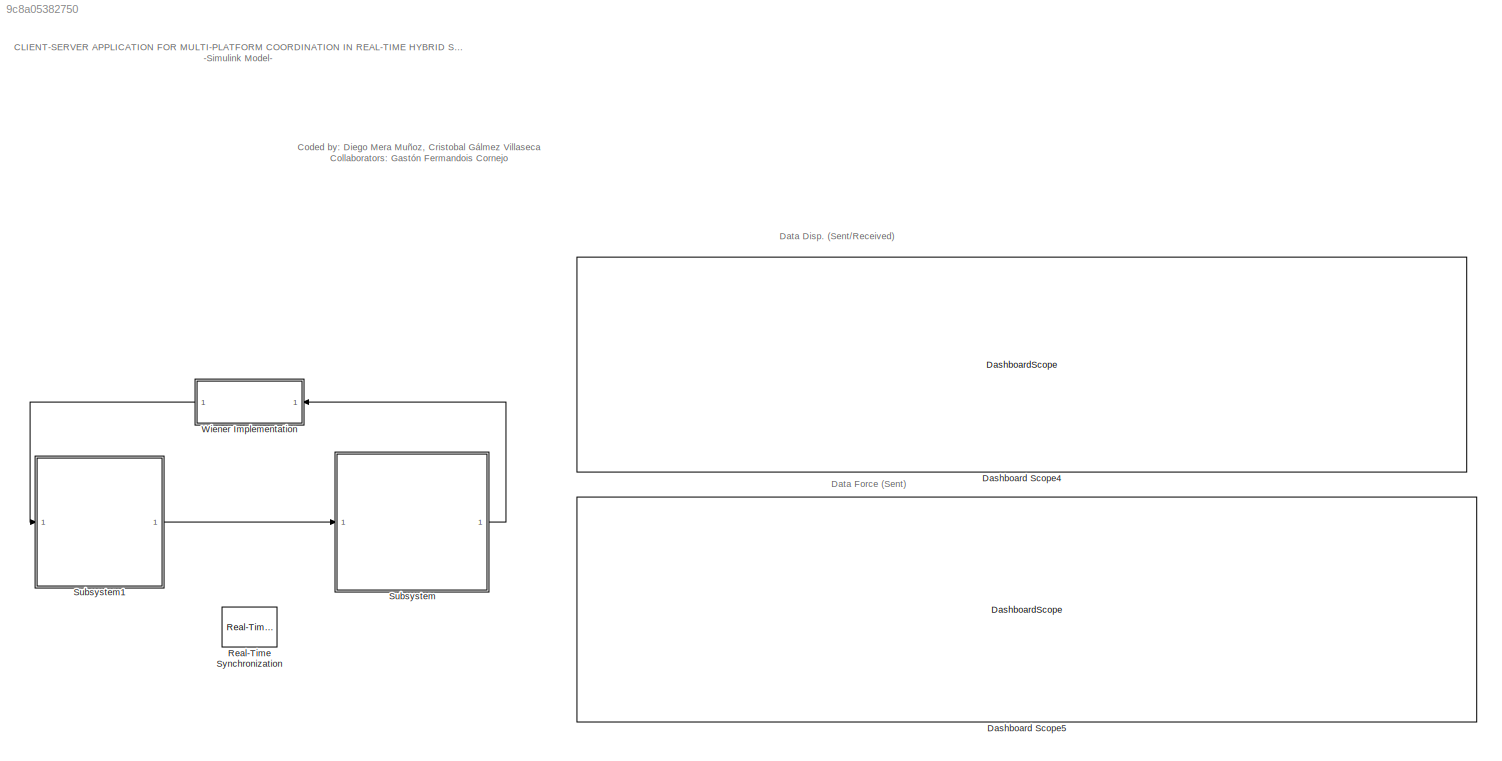
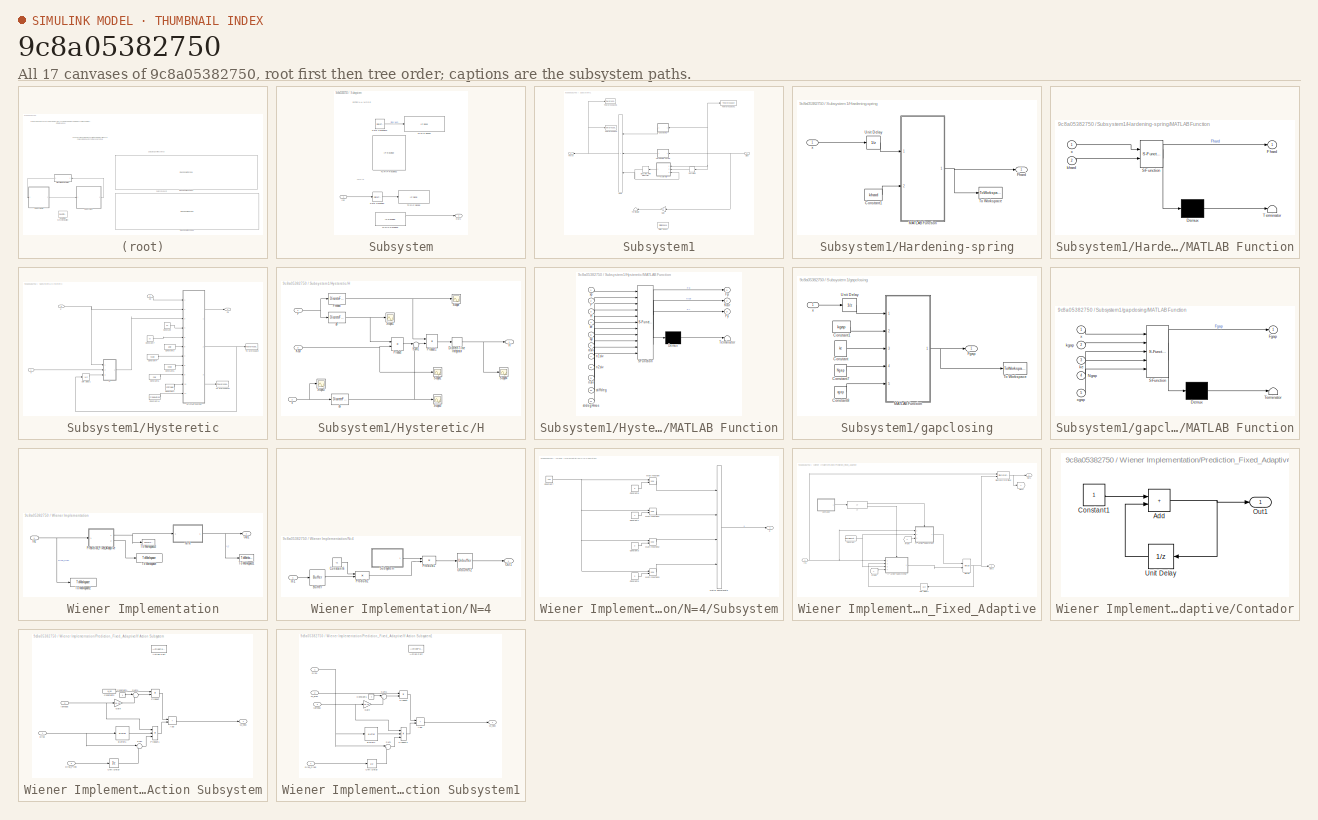
[diagram: thumbnail index - all 17 canvases of the model, root first then tree order]
MODEL slx_9c8a05382750
KIND model
CONFIG AbsTol = auto
CONFIG EnableMultiTasking = off
CONFIG FixedStep = dtfast
CONFIG InitFcn = clear('all');\ninitializeSimulation;
CONFIG MaxStep = auto
CONFIG MinStep = auto
CONFIG PreLoadFcn = initializeSimulation;
CONFIG RelTol = 1e-3
CONFIG SampleTimeConstraint = Unconstrained
CONFIG SolverName = ode8
CONFIG StartTime = 0.0
CONFIG StopTime = 31.2
BLOCK [DashboardScope] Dashboard Scope4
  Ymax = 5
  Ymin = -5
BLOCK [DashboardScope] Dashboard Scope5
  Ymax = 1e-5
  Ymin = -1.5e-5
BLOCK [Reference] Real-Time Synchronization  REF=sldrtlib/Real-Time
Synchronization
  Ports = []
  SourceBlock = sldrtlib/Real-Time\nSynchronization
  SourceProductBaseCode = WT
  SourceType = Simulink Desktop Real-Time Synchronization
BLOCK [SubSystem] Subsystem
  Ports = [1, 1]
  RequestExecContextInheritance = off
BLOCK [Inport] Subsystem/In2
BLOCK [Outport] Subsystem/Out1
BLOCK [RateTransition] Subsystem/Rate Transition
  OutPortSampleTime = dtsim
BLOCK [RateTransition] Subsystem/Rate Transition2
  Commented = on
  OutPortSampleTime = dtsim
BLOCK [Reference] Subsystem/TCP//IP Receive2  REF=raspberrypiNetworklib/TCP//IP Receive
  Commented = on
  Ports = [0, 2]
  Priority = 2
  SourceBlock = raspberrypiNetworklib/TCP//IP Receive
  SourceProductBaseCode = RASPPI
  SourceType = codertarget.raspi.internal.RaspiTCPReceive
BLOCK [Reference] Subsystem/TCP//IP Receive5  REF=instrumentlib/TCP//IP Receive
  Ports = [0, 2]
  Priority = 1
  SourceBlock = instrumentlib/TCP//IP Receive
  SourceProductBaseCode = IC
  SourceType = TCP/IP Receive
BLOCK [Reference] Subsystem/TCP//IP Send2  REF=raspberrypiNetworklib/TCP//IP Send
  Commented = on
  Ports = [1]
  Priority = 1
  SourceBlock = raspberrypiNetworklib/TCP//IP Send
  SourceProductBaseCode = RASPPI
  SourceType = codertarget.raspi.internal.RaspiTCPSend
BLOCK [Reference] Subsystem/TCP//IP Send5  REF=instrumentlib/TCP//IP Send
  Ports = [1]
  Priority = 2
  SourceBlock = instrumentlib/TCP//IP Send
  SourceProductBaseCode = IC
  SourceType = TCP/IP Send
BLOCK [SubSystem] Subsystem1
  Ports = [1, 1]
  RequestExecContextInheritance = off
BLOCK [Derivative] Subsystem1/Derivative
BLOCK [DiscreteIntegrator] Subsystem1/Discrete-Time Integrator
  ICPrevOutput = DiscIntNeverNeededParam
  ICPrevScaledInput = DiscIntNeverNeededParam
  InitialConditionSetting = Auto
  Ports = [1, 1]
  SampleTime = -1
BLOCK [Inport] Subsystem1/Disp
  NameLocation = top
BLOCK [Outport] Subsystem1/Force
  NameLocation = top
  VectorParamsAs1DForOutWhenUnconnected = off
BLOCK [Gain] Subsystem1/Gain
  Gain = ke
BLOCK [SubSystem] Subsystem1/Hardening-spring
  Ports = [1, 1]
  RequestExecContextInheritance = off
BLOCK [Constant] Subsystem1/Hardening-spring/Constant1
  Value = khard
BLOCK [Outport] Subsystem1/Hardening-spring/Fhard
  VectorParamsAs1DForOutWhenUnconnected = off
BLOCK [SubSystem] Subsystem1/Hardening-spring/MATLAB Function
  ErrorFcn = Stateflow.Translate.translate
  PermitHierarchicalResolution = ExplicitOnly
  Ports = [2, 1]
  RequestExecContextInheritance = off
  SFBlockType = MATLAB Function
  TreatAsAtomicUnit = on
BLOCK [Demux] Subsystem1/Hardening-spring/MATLAB Function/ Demux 
  Outputs = 1
  Ports = [1, 1]
BLOCK [S-Function] Subsystem1/Hardening-spring/MATLAB Function/ SFunction 
  EnableBusSupport = on
  FunctionName = sf_sfun
  PortCounts = [2 2]
  Ports = [2, 2]
  SFcnIsStateOwnerBlock = off
  SFunctionDeploymentMode = off
  Tag = Stateflow S-Function 8
BLOCK [Terminator] Subsystem1/Hardening-spring/MATLAB Function/ Terminator 
BLOCK [Outport] Subsystem1/Hardening-spring/MATLAB Function/Fhard
  VectorParamsAs1DForOutWhenUnconnected = off
BLOCK [Inport] Subsystem1/Hardening-spring/MATLAB Function/khard
  Port = 2
BLOCK [Inport] Subsystem1/Hardening-spring/MATLAB Function/x
BLOCK [ToWorkspace] Subsystem1/Hardening-spring/To Workspace
  FixptAsFi = on
  MaxDataPoints = inf
  Ports = [1]
  SampleTime = -1
  SaveFormat = Timeseries
  VariableName = Fhard
BLOCK [UnitDelay] Subsystem1/Hardening-spring/Unit Delay
  HasFrameUpgradeWarning = on
  SampleTime = -1
BLOCK [Inport] Subsystem1/Hardening-spring/x
BLOCK [SubSystem] Subsystem1/Hysteretic
  Ports = [3, 1]
  RequestExecContextInheritance = off
BLOCK [Constant] Subsystem1/Hysteretic/Constant
  Value = ke
BLOCK [Constant] Subsystem1/Hysteretic/Constant1
  Value = stiffdeg
BLOCK [Constant] Subsystem1/Hysteretic/Constant14
  Value = strdegHmos
BLOCK [Constant] Subsystem1/Hysteretic/Constant3
  Value = asiv
BLOCK [Constant] Subsystem1/Hysteretic/Constant4
  Value = n1siv
BLOCK [Constant] Subsystem1/Hysteretic/Constant5
  Value = n2siv
BLOCK [Constant] Subsystem1/Hysteretic/Constant6
  Value = nsiv
BLOCK [Constant] Subsystem1/Hysteretic/Constant7
  Value = xy
BLOCK [Inport] Subsystem1/Hysteretic/F
  Port = 3
BLOCK [Outport] Subsystem1/Hysteretic/Fp
  VectorParamsAs1DForOutWhenUnconnected = off
BLOCK [SubSystem] Subsystem1/Hysteretic/H
  Ports = [3, 1]
  RequestExecContextInheritance = off
BLOCK [DiscreteIntegrator] Subsystem1/Hysteretic/H/Discrete-Time Integrator
  ICPrevOutput = DiscIntNeverNeededParam
  ICPrevScaledInput = DiscIntNeverNeededParam
  InitialConditionSetting = Auto
  IntegratorMethod = Accumulation: Trapezoidal
  Ports = [1, 1]
  SampleTime = -1
BLOCK [Inport] Subsystem1/Hysteretic/H/F
BLOCK [DiscreteFir] Subsystem1/Hysteretic/H/Fmean
  InputPortMap = u0
  OutputPortMap = o0
  Ports = [1, 1]
BLOCK [Outport] Subsystem1/Hysteretic/H/H
  VectorParamsAs1DForOutWhenUnconnected = off
BLOCK [Inport] Subsystem1/Hysteretic/H/Kcur 
  Port = 3
BLOCK [Product] Subsystem1/Hysteretic/H/Product
  Inputs = */
  Ports = [2, 1]
BLOCK [Product] Subsystem1/Hysteretic/H/Product1
  Ports = [2, 1]
BLOCK [Scope] Subsystem1/Hysteretic/H/Scope
  Floating = off
  NumInputPorts = 1
  Ports = [1]
  ScopeSpecificationString = Simulink.scopes.TimeScopeBlockCfg('CurrentConfiguration', extmgr.ConfigurationSet(extmgr.Configuration('Core','General UI',true),extmgr.Configuration('Core','Source UI',true),extmgr.Configuration('Sources','WiredSimulink',true),extmgr.Configuration('Visuals','Time Domain',true,'SerializedDisplays',{struct('MinYLimReal','-1334.94414','MaxYLimReal','1331.24498','YLabelReal','','MinYLimMag','  0.0000...<+1419ch>
BLOCK [Scope] Subsystem1/Hysteretic/H/Scope1
  Floating = off
  NumInputPorts = 1
  Ports = [1]
  ScopeSpecificationString = Simulink.scopes.TimeScopeBlockCfg('CurrentConfiguration', extmgr.ConfigurationSet(extmgr.Configuration('Core','General UI',true),extmgr.Configuration('Core','Source UI',true),extmgr.Configuration('Sources','WiredSimulink',true,'DataLoggingVariableName','ScopeData1'),extmgr.Configuration('Visuals','Time Domain',true,'SerializedDisplays',{struct('MinYLimReal','-69.92113','MaxYLimReal','52.90436','YL...<+1386ch>
BLOCK [Scope] Subsystem1/Hysteretic/H/Scope2
  Floating = off
  NumInputPorts = 1
  Ports = [1]
  ScopeSpecificationString = Simulink.scopes.TimeScopeBlockCfg('CurrentConfiguration', extmgr.ConfigurationSet(extmgr.Configuration('Core','General UI',true),extmgr.Configuration('Core','Source UI',true),extmgr.Configuration('Sources','WiredSimulink',true,'DataLoggingVariableName','ScopeData2'),extmgr.Configuration('Visuals','Time Domain',true,'SerializedDisplays',{struct('MinYLimReal','-148616.125','MaxYLimReal','1338735.125...<+1440ch>
BLOCK [Scope] Subsystem1/Hysteretic/H/Scope3
  Floating = off
  NumInputPorts = 1
  Ports = [1]
  ScopeSpecificationString = Simulink.scopes.TimeScopeBlockCfg('CurrentConfiguration', extmgr.ConfigurationSet(extmgr.Configuration('Core','General UI',true),extmgr.Configuration('Core','Source UI',true),extmgr.Configuration('Sources','WiredSimulink',true,'DataLoggingVariableName','ScopeData3'),extmgr.Configuration('Visuals','Time Domain',true,'SerializedDisplays',{struct('MinYLimReal','-23.92575','MaxYLimReal','20.89861','YL...<+1367ch>
BLOCK [Scope] Subsystem1/Hysteretic/H/Scope4
  Floating = off
  NumInputPorts = 1
  Ports = [1]
  ScopeSpecificationString = Simulink.scopes.TimeScopeBlockCfg('CurrentConfiguration', extmgr.ConfigurationSet(extmgr.Configuration('Core','General UI',true),extmgr.Configuration('Core','Source UI',true),extmgr.Configuration('Sources','WiredSimulink',true,'DataLoggingVariableName','ScopeData4'),extmgr.Configuration('Visuals','Time Domain',true,'SerializedDisplays',{struct('MinYLimReal','-24.48488','MaxYLimReal','220.36392','Y...<+1412ch>
BLOCK [Scope] Subsystem1/Hysteretic/H/Scope5
  Floating = off
  NumInputPorts = 1
  Ports = [1]
  ScopeSpecificationString = Simulink.scopes.TimeScopeBlockCfg('CurrentConfiguration', extmgr.ConfigurationSet(extmgr.Configuration('Core','General UI',true),extmgr.Configuration('Core','Source UI',true),extmgr.Configuration('Sources','WiredSimulink',true,'DataLoggingVariableName','ScopeData5'),extmgr.Configuration('Visuals','Time Domain',true,'SerializedDisplays',{struct('MinYLimReal','-2556.51301','MaxYLimReal','2563.56064'...<+1453ch>
BLOCK [Sum] Subsystem1/Hysteretic/H/Sum1
  Inputs = |-+
  Ports = [2, 1]
BLOCK [DiscreteFir] Subsystem1/Hysteretic/H/dF
  Coefficients = [1 -1]
  InputPortMap = u0
  OutputPortMap = o0
  Ports = [1, 1]
BLOCK [DiscreteFir] Subsystem1/Hysteretic/H/dx
  Coefficients = [1 -1]
  InputPortMap = u0
  OutputPortMap = o0
  Ports = [1, 1]
BLOCK [Inport] Subsystem1/Hysteretic/H/x
  Port = 2
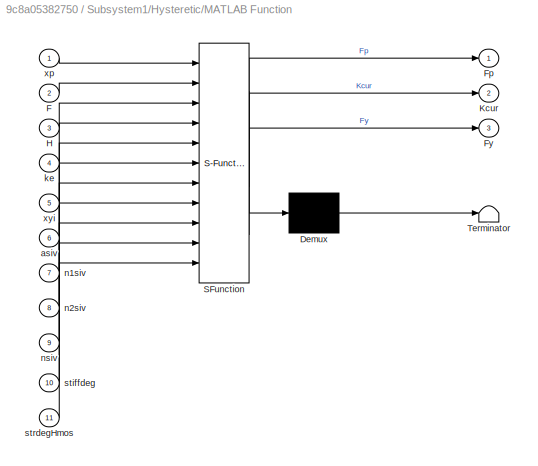
BLOCK [SubSystem] Subsystem1/Hysteretic/MATLAB Function
  ErrorFcn = Stateflow.Translate.translate
  PermitHierarchicalResolution = ExplicitOnly
  Ports = [11, 3]
  RequestExecContextInheritance = off
  SFBlockType = MATLAB Function
  TreatAsAtomicUnit = on
BLOCK [Demux] Subsystem1/Hysteretic/MATLAB Function/ Demux 
  Outputs = 1
  Ports = [1, 1]
BLOCK [S-Function] Subsystem1/Hysteretic/MATLAB Function/ SFunction 
  EnableBusSupport = on
  FunctionName = sf_sfun
  PortCounts = [11 4]
  Ports = [11, 4]
  SFcnIsStateOwnerBlock = off
  SFunctionDeploymentMode = off
  Tag = Stateflow S-Function 9
BLOCK [Terminator] Subsystem1/Hysteretic/MATLAB Function/ Terminator 
BLOCK [Inport] Subsystem1/Hysteretic/MATLAB Function/F
  Port = 2
BLOCK [Outport] Subsystem1/Hysteretic/MATLAB Function/Fp
  VectorParamsAs1DForOutWhenUnconnected = off
BLOCK [Outport] Subsystem1/Hysteretic/MATLAB Function/Fy
  Port = 3
  VectorParamsAs1DForOutWhenUnconnected = off
BLOCK [Inport] Subsystem1/Hysteretic/MATLAB Function/H
  Port = 3
BLOCK [Outport] Subsystem1/Hysteretic/MATLAB Function/Kcur
  Port = 2
  VectorParamsAs1DForOutWhenUnconnected = off
BLOCK [Inport] Subsystem1/Hysteretic/MATLAB Function/asiv
  Port = 6
BLOCK [Inport] Subsystem1/Hysteretic/MATLAB Function/ke
  Port = 4
BLOCK [Inport] Subsystem1/Hysteretic/MATLAB Function/n1siv
  Port = 7
BLOCK [Inport] Subsystem1/Hysteretic/MATLAB Function/n2siv
  Port = 8
BLOCK [Inport] Subsystem1/Hysteretic/MATLAB Function/nsiv
  Port = 9
BLOCK [Inport] Subsystem1/Hysteretic/MATLAB Function/stiffdeg
  Port = 10
BLOCK [Inport] Subsystem1/Hysteretic/MATLAB Function/strdegHmos
  Port = 11
BLOCK [Inport] Subsystem1/Hysteretic/MATLAB Function/xp
BLOCK [Inport] Subsystem1/Hysteretic/MATLAB Function/xyi
  Port = 5
BLOCK [ToWorkspace] Subsystem1/Hysteretic/To Workspace
  FixptAsFi = on
  MaxDataPoints = inf
  Ports = [1]
  SampleTime = -1
  SaveFormat = Timeseries
  VariableName = Kcur
BLOCK [ToWorkspace] Subsystem1/Hysteretic/To Workspace1
  FixptAsFi = on
  MaxDataPoints = inf
  Ports = [1]
  SampleTime = -1
  SaveFormat = Timeseries
  VariableName = Fy
BLOCK [UnitDelay] Subsystem1/Hysteretic/Unit Delay1
  HasFrameUpgradeWarning = on
  InitialCondition = ke
  SampleTime = -1
BLOCK [Inport] Subsystem1/Hysteretic/x
BLOCK [Inport] Subsystem1/Hysteretic/xp
  Port = 2
BLOCK [StateSpace] Subsystem1/State-Space
  A = Ap
  B = Bp
  C = Cp
  Commented = on
  D = Dp
  InitialCondition = 0
  NameLocation = top
  Ports = [1, 1]
BLOCK [Sum] Subsystem1/Sum
  IconShape = rectangular
  Inputs = +++
  Ports = [3, 1]
BLOCK [Terminator] Subsystem1/Terminator
  NameLocation = top
BLOCK [ToWorkspace] Subsystem1/To Workspace
  FixptAsFi = on
  MaxDataPoints = inf
  Ports = [1]
  SampleTime = -1
  SaveFormat = Timeseries
  VariableName = rt
BLOCK [ToWorkspace] Subsystem1/To Workspace1
  FixptAsFi = on
  MaxDataPoints = inf
  Ports = [1]
  SampleTime = -1
  SaveFormat = Timeseries
  VariableName = Desp
BLOCK [ToWorkspace] Subsystem1/To Workspace5
  FixptAsFi = on
  MaxDataPoints = inf
  Ports = [1]
  SampleTime = -1
  SaveFormat = Timeseries
  VariableName = Fm
BLOCK [SubSystem] Subsystem1/gapclosing
  Ports = [1, 1]
  RequestExecContextInheritance = off
BLOCK [Constant] Subsystem1/gapclosing/Constant
  Value = ke
BLOCK [Constant] Subsystem1/gapclosing/Constant1
  Value = kgap
BLOCK [Constant] Subsystem1/gapclosing/Constant7
  Value = Ngap
BLOCK [Constant] Subsystem1/gapclosing/Constant8
  Value = xgap
BLOCK [Outport] Subsystem1/gapclosing/Fgap
  VectorParamsAs1DForOutWhenUnconnected = off
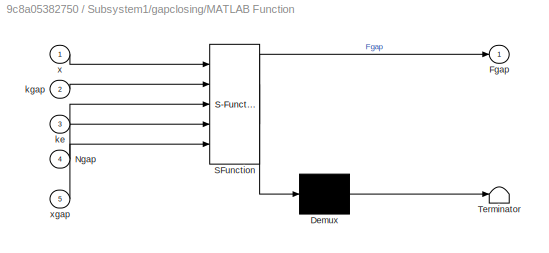
BLOCK [SubSystem] Subsystem1/gapclosing/MATLAB Function
  ErrorFcn = Stateflow.Translate.translate
  PermitHierarchicalResolution = ExplicitOnly
  Ports = [5, 1]
  RequestExecContextInheritance = off
  SFBlockType = MATLAB Function
  TreatAsAtomicUnit = on
BLOCK [Demux] Subsystem1/gapclosing/MATLAB Function/ Demux 
  Outputs = 1
  Ports = [1, 1]
BLOCK [S-Function] Subsystem1/gapclosing/MATLAB Function/ SFunction 
  EnableBusSupport = on
  FunctionName = sf_sfun
  PortCounts = [5 2]
  Ports = [5, 2]
  SFcnIsStateOwnerBlock = off
  SFunctionDeploymentMode = off
  Tag = Stateflow S-Function 10
BLOCK [Terminator] Subsystem1/gapclosing/MATLAB Function/ Terminator 
BLOCK [Outport] Subsystem1/gapclosing/MATLAB Function/Fgap
  VectorParamsAs1DForOutWhenUnconnected = off
BLOCK [Inport] Subsystem1/gapclosing/MATLAB Function/Ngap
  Port = 4
BLOCK [Inport] Subsystem1/gapclosing/MATLAB Function/ke
  Port = 3
BLOCK [Inport] Subsystem1/gapclosing/MATLAB Function/kgap
  Port = 2
BLOCK [Inport] Subsystem1/gapclosing/MATLAB Function/x
BLOCK [Inport] Subsystem1/gapclosing/MATLAB Function/xgap
  Port = 5
BLOCK [ToWorkspace] Subsystem1/gapclosing/To Workspace
  FixptAsFi = on
  MaxDataPoints = inf
  Ports = [1]
  SampleTime = -1
  SaveFormat = Timeseries
  VariableName = Fgap
BLOCK [UnitDelay] Subsystem1/gapclosing/Unit Delay
  HasFrameUpgradeWarning = on
  SampleTime = -1
BLOCK [Inport] Subsystem1/gapclosing/x
BLOCK [SubSystem] Wiener Implementation
  Ports = [1, 1]
  RequestExecContextInheritance = off
BLOCK [Inport] Wiener Implementation/In1
BLOCK [SubSystem] Wiener Implementation/N=4
  Ports = [1, 1]
  RequestExecContextInheritance = off
BLOCK [Buffer] Wiener Implementation/N=4/Buffer
  N = 4
  OutputFrames = off
  V = 3
BLOCK [Constant] Wiener Implementation/N=4/Constant6
  Value = V1
BLOCK [Inport] Wiener Implementation/N=4/In1
BLOCK [Outport] Wiener Implementation/N=4/Out1
BLOCK [Product] Wiener Implementation/N=4/Product1
  Multiplication = Matrix(*)
  Ports = [2, 1]
BLOCK [Product] Wiener Implementation/N=4/Product2
  Multiplication = Matrix(*)
  Ports = [2, 1]
BLOCK [SubSystem] Wiener Implementation/N=4/Subsystem
  Ports = [0, 1]
  RequestExecContextInheritance = off
BLOCK [Constant] Wiener Implementation/N=4/Subsystem/Constant1
BLOCK [Constant] Wiener Implementation/N=4/Subsystem/Constant3
  Value = 2
BLOCK [Constant] Wiener Implementation/N=4/Subsystem/Constant5
  Value = 3
BLOCK [Constant] Wiener Implementation/N=4/Subsystem/Constant6
  Value = 0
BLOCK [Constant] Wiener Implementation/N=4/Subsystem/Constant7
  Value = x02
BLOCK [Math] Wiener Implementation/N=4/Subsystem/Math Function
  Operator = pow
  Ports = [2, 1]
BLOCK [Math] Wiener Implementation/N=4/Subsystem/Math Function1
  Operator = pow
  Ports = [2, 1]
BLOCK [Math] Wiener Implementation/N=4/Subsystem/Math Function2
  Operator = pow
  Ports = [2, 1]
BLOCK [Math] Wiener Implementation/N=4/Subsystem/Math Function3
  Operator = pow
  Ports = [2, 1]
BLOCK [Concatenate] Wiener Implementation/N=4/Subsystem/Matrix Concatenate
  ConcatenateDimension = 2
  Mode = Multidimensional array
  NumInputs = 4
  Ports = [4, 1]
BLOCK [Outport] Wiener Implementation/N=4/Subsystem/a
BLOCK [Unbuffer] Wiener Implementation/N=4/Unbuffer2
  Ports = [1, 1]
BLOCK [Outport] Wiener Implementation/Out1
BLOCK [SubSystem] Wiener Implementation/Prediction_Fixed_Adaptive
  Ports = [1, 2]
  RequestExecContextInheritance = off
BLOCK [Constant] Wiener Implementation/Prediction_Fixed_Adaptive/Constant
  Value = learningrate*adaptive
BLOCK [SubSystem] Wiener Implementation/Prediction_Fixed_Adaptive/Contador
  Ports = [0, 1]
  RequestExecContextInheritance = off
BLOCK [Sum] Wiener Implementation/Prediction_Fixed_Adaptive/Contador/Add
  IconShape = rectangular
  Ports = [2, 1]
BLOCK [Constant] Wiener Implementation/Prediction_Fixed_Adaptive/Contador/Constant1
BLOCK [Outport] Wiener Implementation/Prediction_Fixed_Adaptive/Contador/Out1
BLOCK [UnitDelay] Wiener Implementation/Prediction_Fixed_Adaptive/Contador/Unit Delay
  HasFrameUpgradeWarning = on
  NameLocation = top
  SampleTime = -1
BLOCK [DiscreteFir] Wiener Implementation/Prediction_Fixed_Adaptive/Discrete FIR Filter
  CoefSource = Input port
  InputPortMap = u0,u1
  OutputPortMap = o0
  Ports = [2, 1]
  SampleTime = dtsim
BLOCK [From] Wiener Implementation/Prediction_Fixed_Adaptive/From
BLOCK [From] Wiener Implementation/Prediction_Fixed_Adaptive/From1
BLOCK [Goto] Wiener Implementation/Prediction_Fixed_Adaptive/Goto
BLOCK [If] Wiener Implementation/Prediction_Fixed_Adaptive/If
  IfExpression = u1 <2
  Ports = [1, 2]
BLOCK [SubSystem] Wiener Implementation/Prediction_Fixed_Adaptive/If Action Subsystem
  Ports = [3, 1, 0, 0, 0, 0, 0, 1]
  RequestExecContextInheritance = off
  TreatAsAtomicUnit = on
BLOCK [ActionPort] Wiener Implementation/Prediction_Fixed_Adaptive/If Action Subsystem/Action Port
  ActionPortLabel = if(u1 <2)
BLOCK [Sum] Wiener Implementation/Prediction_Fixed_Adaptive/If Action Subsystem/Add
  IconShape = rectangular
  Ports = [2, 1]
BLOCK [Buffer] Wiener Implementation/Prediction_Fixed_Adaptive/If Action Subsystem/Buffer1
  N = 8
  OutputFrames = off
  V = 7
BLOCK [Constant] Wiener Implementation/Prediction_Fixed_Adaptive/If Action Subsystem/Constant1
BLOCK [Constant] Wiener Implementation/Prediction_Fixed_Adaptive/If Action Subsystem/Constant2
  Value = w_80
BLOCK [Inport] Wiener Implementation/Prediction_Fixed_Adaptive/If Action Subsystem/Disp
BLOCK [Inport] Wiener Implementation/Prediction_Fixed_Adaptive/If Action Subsystem/Disp_Pred
  Port = 3
BLOCK [Gain] Wiener Implementation/Prediction_Fixed_Adaptive/If Action Subsystem/Gain
  Gain = 1e-10
BLOCK [Product] Wiener Implementation/Prediction_Fixed_Adaptive/If Action Subsystem/Product
  Ports = [2, 1]
BLOCK [Product] Wiener Implementation/Prediction_Fixed_Adaptive/If Action Subsystem/Product1
  Inputs = 3
  Ports = [3, 1]
BLOCK [Sum] Wiener Implementation/Prediction_Fixed_Adaptive/If Action Subsystem/Sum
  Inputs = |+-
  Ports = [2, 1]
BLOCK [Sum] Wiener Implementation/Prediction_Fixed_Adaptive/If Action Subsystem/Sum1
  Inputs = |+-
  Ports = [2, 1]
BLOCK [UnitDelay] Wiener Implementation/Prediction_Fixed_Adaptive/If Action Subsystem/Unit Delay
  HasFrameUpgradeWarning = on
  NameLocation = top
  SampleTime = -1
BLOCK [Outport] Wiener Implementation/Prediction_Fixed_Adaptive/If Action Subsystem/W_new
BLOCK [Inport] Wiener Implementation/Prediction_Fixed_Adaptive/If Action Subsystem/lambda
  Port = 2
BLOCK [SubSystem] Wiener Implementation/Prediction_Fixed_Adaptive/If Action Subsystem1
  Ports = [4, 1, 0, 0, 0, 0, 0, 1]
  RequestExecContextInheritance = off
  TreatAsAtomicUnit = on
BLOCK [ActionPort] Wiener Implementation/Prediction_Fixed_Adaptive/If Action Subsystem1/Action Port
  ActionPortLabel = else
BLOCK [Sum] Wiener Implementation/Prediction_Fixed_Adaptive/If Action Subsystem1/Add
  IconShape = rectangular
  Ports = [2, 1]
BLOCK [Buffer] Wiener Implementation/Prediction_Fixed_Adaptive/If Action Subsystem1/Buffer1
  N = 8
  OutputFrames = off
  V = 7
BLOCK [Constant] Wiener Implementation/Prediction_Fixed_Adaptive/If Action Subsystem1/Constant1
BLOCK [Inport] Wiener Implementation/Prediction_Fixed_Adaptive/If Action Subsystem1/Disp
BLOCK [Inport] Wiener Implementation/Prediction_Fixed_Adaptive/If Action Subsystem1/Disp_Pred
  Port = 4
BLOCK [Gain] Wiener Implementation/Prediction_Fixed_Adaptive/If Action Subsystem1/Gain
  Gain = 1e-10
BLOCK [Product] Wiener Implementation/Prediction_Fixed_Adaptive/If Action Subsystem1/Product
  Ports = [2, 1]
BLOCK [Product] Wiener Implementation/Prediction_Fixed_Adaptive/If Action Subsystem1/Product1
  Inputs = 3
  Ports = [3, 1]
BLOCK [Sum] Wiener Implementation/Prediction_Fixed_Adaptive/If Action Subsystem1/Sum
  Inputs = |+-
  Ports = [2, 1]
BLOCK [Sum] Wiener Implementation/Prediction_Fixed_Adaptive/If Action Subsystem1/Sum1
  Inputs = |+-
  Ports = [2, 1]
BLOCK [UnitDelay] Wiener Implementation/Prediction_Fixed_Adaptive/If Action Subsystem1/Unit Delay
  HasFrameUpgradeWarning = on
  NameLocation = top
  SampleTime = -1
BLOCK [Outport] Wiener Implementation/Prediction_Fixed_Adaptive/If Action Subsystem1/W_new
BLOCK [Inport] Wiener Implementation/Prediction_Fixed_Adaptive/If Action Subsystem1/W_prev
  Port = 2
BLOCK [Inport] Wiener Implementation/Prediction_Fixed_Adaptive/If Action Subsystem1/lambda
  Port = 3
BLOCK [Inport] Wiener Implementation/Prediction_Fixed_Adaptive/In1
BLOCK [Merge] Wiener Implementation/Prediction_Fixed_Adaptive/Merge
  Ports = [2, 1]
BLOCK [Outport] Wiener Implementation/Prediction_Fixed_Adaptive/Out1
BLOCK [Outport] Wiener Implementation/Prediction_Fixed_Adaptive/Out2
  Port = 2
BLOCK [UnitDelay] Wiener Implementation/Prediction_Fixed_Adaptive/Unit Delay1
  HasFrameUpgradeWarning = on
  SampleTime = -1
BLOCK [ToWorkspace] Wiener Implementation/To Workspace
  FixptAsFi = on
  MaxDataPoints = inf
  Ports = [1]
  SampleTime = -1
  SaveFormat = Timeseries
  VariableName = adaptive_parameters
BLOCK [ToWorkspace] Wiener Implementation/To Workspace1
  FixptAsFi = on
  MaxDataPoints = inf
  Ports = [1]
  SampleTime = -1
  SaveFormat = Timeseries
  VariableName = x_t
BLOCK [ToWorkspace] Wiener Implementation/To Workspace2
  FixptAsFi = on
  MaxDataPoints = inf
  Ports = [1]
  SampleTime = -1
  SaveFormat = Timeseries
  VariableName = Disp_Num
BLOCK [ToWorkspace] Wiener Implementation/To Workspace3
  FixptAsFi = on
  MaxDataPoints = inf
  Ports = [1]
  SampleTime = -1
  SaveFormat = Timeseries
  VariableName = pred
ANNOTATION (root): CLIENT-SERVER APPLICATION FOR MULTI-PLATFORM COORDINATION IN REAL-TIME HYBRID SIMULATION TESTING -Simulink Model-
ANNOTATION (root): Coded by: Diego Mera Muñoz, Cristobal Gálmez Villaseca Collaborators: Gastón Fermandois Cornejo
ANNOTATION (root): Data Disp. (Sent/Received)
ANNOTATION (root): Data Force (Sent)
ANNOTATION Subsystem: EXTERNAL MODE
ANNOTATION Subsystem: LOCAL
LINE Subsystem/In2:1 -> Subsystem/Rate Transition:1
LINE Subsystem/Rate Transition2:1 -> Subsystem/TCP//IP Send2:1
LINE Subsystem/Rate Transition:1 -> Subsystem/TCP//IP Send5:1
LINE Subsystem/TCP//IP Receive5:1 -> Subsystem/Out1:1
LINE Subsystem1/Derivative:1 -> Subsystem1/Hysteretic:2
NET Subsystem1/Discrete-Time Integrator:1 -> Subsystem1/Hysteretic:3, Subsystem1/Sum:3
NET Subsystem1/Disp:1 -> Subsystem1/Derivative:1, Subsystem1/Gain:1, Subsystem1/Hardening-spring:1, Subsystem1/Hysteretic:1, Subsystem1/To Workspace1:1, Subsystem1/gapclosing:1
LINE Subsystem1/Gain:1 -> Subsystem1/Terminator:1
LINE Subsystem1/Hardening-spring/Constant1:1 -> Subsystem1/Hardening-spring/MATLAB Function:2
NET Subsystem1/Hardening-spring/MATLAB Function:1 -> Subsystem1/Hardening-spring/Fhard:1, Subsystem1/Hardening-spring/To Workspace:1
LINE Subsystem1/Hardening-spring/Unit Delay:1 -> Subsystem1/Hardening-spring/MATLAB Function:1
LINE Subsystem1/Hardening-spring/x:1 -> Subsystem1/Hardening-spring/Unit Delay:1
LINE Subsystem1/Hardening-spring:1 -> Subsystem1/Sum:2
LINE Subsystem1/Hysteretic/Constant14:1 -> Subsystem1/Hysteretic/MATLAB Function:11
LINE Subsystem1/Hysteretic/Constant1:1 -> Subsystem1/Hysteretic/MATLAB Function:10
LINE Subsystem1/Hysteretic/Constant3:1 -> Subsystem1/Hysteretic/MATLAB Function:6
LINE Subsystem1/Hysteretic/Constant4:1 -> Subsystem1/Hysteretic/MATLAB Function:7
LINE Subsystem1/Hysteretic/Constant5:1 -> Subsystem1/Hysteretic/MATLAB Function:8
LINE Subsystem1/Hysteretic/Constant6:1 -> Subsystem1/Hysteretic/MATLAB Function:9
LINE Subsystem1/Hysteretic/Constant7:1 -> Subsystem1/Hysteretic/MATLAB Function:5
LINE Subsystem1/Hysteretic/Constant:1 -> Subsystem1/Hysteretic/MATLAB Function:4
NET Subsystem1/Hysteretic/F:1 -> Subsystem1/Hysteretic/H:1, Subsystem1/Hysteretic/MATLAB Function:2
NET Subsystem1/Hysteretic/H/Discrete-Time Integrator:1 -> Subsystem1/Hysteretic/H/H:1, Subsystem1/Hysteretic/H/Scope4:1
NET Subsystem1/Hysteretic/H/F:1 -> Subsystem1/Hysteretic/H/Fmean:1, Subsystem1/Hysteretic/H/dF:1
NET Subsystem1/Hysteretic/H/Fmean:1 -> Subsystem1/Hysteretic/H/Product1:1, Subsystem1/Hysteretic/H/Scope:1
NET Subsystem1/Hysteretic/H/Kcur :1 -> Subsystem1/Hysteretic/H/Product:2, Subsystem1/Hysteretic/H/Scope2:1
LINE Subsystem1/Hysteretic/H/Product1:1 -> Subsystem1/Hysteretic/H/Discrete-Time Integrator:1
LINE Subsystem1/Hysteretic/H/Product:1 -> Subsystem1/Hysteretic/H/Sum1:1
LINE Subsystem1/Hysteretic/H/Sum1:1 -> Subsystem1/Hysteretic/H/Product1:2
NET Subsystem1/Hysteretic/H/dF:1 -> Subsystem1/Hysteretic/H/Product:1, Subsystem1/Hysteretic/H/Scope1:1
NET Subsystem1/Hysteretic/H/dx:1 -> Subsystem1/Hysteretic/H/Scope3:1, Subsystem1/Hysteretic/H/Sum1:2
NET Subsystem1/Hysteretic/H/x:1 -> Subsystem1/Hysteretic/H/Scope5:1, Subsystem1/Hysteretic/H/dx:1
LINE Subsystem1/Hysteretic/H:1 -> Subsystem1/Hysteretic/MATLAB Function:3
LINE Subsystem1/Hysteretic/MATLAB Function:1 -> Subsystem1/Hysteretic/Fp:1
NET Subsystem1/Hysteretic/MATLAB Function:2 -> Subsystem1/Hysteretic/To Workspace:1, Subsystem1/Hysteretic/Unit Delay1:1
LINE Subsystem1/Hysteretic/MATLAB Function:3 -> Subsystem1/Hysteretic/To Workspace1:1
LINE Subsystem1/Hysteretic/Unit Delay1:1 -> Subsystem1/Hysteretic/H:3
LINE Subsystem1/Hysteretic/x:1 -> Subsystem1/Hysteretic/H:2
LINE Subsystem1/Hysteretic/xp:1 -> Subsystem1/Hysteretic/MATLAB Function:1
LINE Subsystem1/Hysteretic:1 -> Subsystem1/Discrete-Time Integrator:1
NET Subsystem1/Sum:1 -> Subsystem1/Force:1, Subsystem1/To Workspace5:1, Subsystem1/To Workspace:1
LINE Subsystem1/gapclosing/Constant1:1 -> Subsystem1/gapclosing/MATLAB Function:2
LINE Subsystem1/gapclosing/Constant7:1 -> Subsystem1/gapclosing/MATLAB Function:4
LINE Subsystem1/gapclosing/Constant8:1 -> Subsystem1/gapclosing/MATLAB Function:5
LINE Subsystem1/gapclosing/Constant:1 -> Subsystem1/gapclosing/MATLAB Function:3
NET Subsystem1/gapclosing/MATLAB Function:1 -> Subsystem1/gapclosing/Fgap:1, Subsystem1/gapclosing/To Workspace:1
LINE Subsystem1/gapclosing/Unit Delay:1 -> Subsystem1/gapclosing/MATLAB Function:1
LINE Subsystem1/gapclosing/x:1 -> Subsystem1/gapclosing/Unit Delay:1
LINE Subsystem1/gapclosing:1 -> Subsystem1/Sum:1
LINE Subsystem1:1 -> Subsystem:1
LINE Subsystem:1 -> Wiener Implementation:1
NET Wiener Implementation/In1:1 -> Wiener Implementation/Prediction_Fixed_Adaptive:1, Wiener Implementation/To Workspace2:1
LINE Wiener Implementation/N=4/Buffer:1 -> Wiener Implementation/N=4/Product2:2
LINE Wiener Implementation/N=4/Constant6:1 -> Wiener Implementation/N=4/Product2:1
LINE Wiener Implementation/N=4/In1:1 -> Wiener Implementation/N=4/Buffer:1
LINE Wiener Implementation/N=4/Product1:1 -> Wiener Implementation/N=4/Unbuffer2:1
LINE Wiener Implementation/N=4/Product2:1 -> Wiener Implementation/N=4/Product1:2
LINE Wiener Implementation/N=4/Subsystem/Constant1:1 -> Wiener Implementation/N=4/Subsystem/Math Function1:2
LINE Wiener Implementation/N=4/Subsystem/Constant3:1 -> Wiener Implementation/N=4/Subsystem/Math Function2:2
LINE Wiener Implementation/N=4/Subsystem/Constant5:1 -> Wiener Implementation/N=4/Subsystem/Math Function3:2
LINE Wiener Implementation/N=4/Subsystem/Constant6:1 -> Wiener Implementation/N=4/Subsystem/Math Function:2
NET Wiener Implementation/N=4/Subsystem/Constant7:1 -> Wiener Implementation/N=4/Subsystem/Math Function1:1, Wiener Implementation/N=4/Subsystem/Math Function2:1, Wiener Implementation/N=4/Subsystem/Math Function3:1, Wiener Implementation/N=4/Subsystem/Math Function:1
LINE Wiener Implementation/N=4/Subsystem/Math Function1:1 -> Wiener Implementation/N=4/Subsystem/Matrix Concatenate:2
LINE Wiener Implementation/N=4/Subsystem/Math Function2:1 -> Wiener Implementation/N=4/Subsystem/Matrix Concatenate:3
LINE Wiener Implementation/N=4/Subsystem/Math Function3:1 -> Wiener Implementation/N=4/Subsystem/Matrix Concatenate:4
LINE Wiener Implementation/N=4/Subsystem/Math Function:1 -> Wiener Implementation/N=4/Subsystem/Matrix Concatenate:1
LINE Wiener Implementation/N=4/Subsystem/Matrix Concatenate:1 -> Wiener Implementation/N=4/Subsystem/a:1
LINE Wiener Implementation/N=4/Subsystem:1 -> Wiener Implementation/N=4/Product1:1
LINE Wiener Implementation/N=4/Unbuffer2:1 -> Wiener Implementation/N=4/Out1:1
NET Wiener Implementation/N=4:1 -> Wiener Implementation/Out1:1, Wiener Implementation/To Workspace1:1
NET Wiener Implementation/Prediction_Fixed_Adaptive/Constant:1 -> Wiener Implementation/Prediction_Fixed_Adaptive/If Action Subsystem1:3, Wiener Implementation/Prediction_Fixed_Adaptive/If Action Subsystem:2
NET Wiener Implementation/Prediction_Fixed_Adaptive/Contador/Add:1 -> Wiener Implementation/Prediction_Fixed_Adaptive/Contador/Out1:1, Wiener Implementation/Prediction_Fixed_Adaptive/Contador/Unit Delay:1
LINE Wiener Implementation/Prediction_Fixed_Adaptive/Contador/Constant1:1 -> Wiener Implementation/Prediction_Fixed_Adaptive/Contador/Add:1
LINE Wiener Implementation/Prediction_Fixed_Adaptive/Contador/Unit Delay:1 -> Wiener Implementation/Prediction_Fixed_Adaptive/Contador/Add:2
LINE Wiener Implementation/Prediction_Fixed_Adaptive/Contador:1 -> Wiener Implementation/Prediction_Fixed_Adaptive/If:1
NET Wiener Implementation/Prediction_Fixed_Adaptive/Discrete FIR Filter:1 -> Wiener Implementation/Prediction_Fixed_Adaptive/Goto:1, Wiener Implementation/Prediction_Fixed_Adaptive/Out1:1
LINE Wiener Implementation/Prediction_Fixed_Adaptive/From1:1 -> Wiener Implementation/Prediction_Fixed_Adaptive/If Action Subsystem1:4
LINE Wiener Implementation/Prediction_Fixed_Adaptive/From:1 -> Wiener Implementation/Prediction_Fixed_Adaptive/If Action Subsystem:3
LINE Wiener Implementation/Prediction_Fixed_Adaptive/If Action Subsystem/Add:1 -> Wiener Implementation/Prediction_Fixed_Adaptive/If Action Subsystem/W_new:1
LINE Wiener Implementation/Prediction_Fixed_Adaptive/If Action Subsystem/Buffer1:1 -> Wiener Implementation/Prediction_Fixed_Adaptive/If Action Subsystem/Product1:2
LINE Wiener Implementation/Prediction_Fixed_Adaptive/If Action Subsystem/Constant1:1 -> Wiener Implementation/Prediction_Fixed_Adaptive/If Action Subsystem/Sum1:1
LINE Wiener Implementation/Prediction_Fixed_Adaptive/If Action Subsystem/Constant2:1 -> Wiener Implementation/Prediction_Fixed_Adaptive/If Action Subsystem/Product:1
NET Wiener Implementation/Prediction_Fixed_Adaptive/If Action Subsystem/Disp:1 -> Wiener Implementation/Prediction_Fixed_Adaptive/If Action Subsystem/Buffer1:1, Wiener Implementation/Prediction_Fixed_Adaptive/If Action Subsystem/Sum:1
LINE Wiener Implementation/Prediction_Fixed_Adaptive/If Action Subsystem/Disp_Pred:1 -> Wiener Implementation/Prediction_Fixed_Adaptive/If Action Subsystem/Unit Delay:1
LINE Wiener Implementation/Prediction_Fixed_Adaptive/If Action Subsystem/Gain:1 -> Wiener Implementation/Prediction_Fixed_Adaptive/If Action Subsystem/Sum1:2
LINE Wiener Implementation/Prediction_Fixed_Adaptive/If Action Subsystem/Product1:1 -> Wiener Implementation/Prediction_Fixed_Adaptive/If Action Subsystem/Add:2
LINE Wiener Implementation/Prediction_Fixed_Adaptive/If Action Subsystem/Product:1 -> Wiener Implementation/Prediction_Fixed_Adaptive/If Action Subsystem/Add:1
LINE Wiener Implementation/Prediction_Fixed_Adaptive/If Action Subsystem/Sum1:1 -> Wiener Implementation/Prediction_Fixed_Adaptive/If Action Subsystem/Product:2
LINE Wiener Implementation/Prediction_Fixed_Adaptive/If Action Subsystem/Sum:1 -> Wiener Implementation/Prediction_Fixed_Adaptive/If Action Subsystem/Product1:3
LINE Wiener Implementation/Prediction_Fixed_Adaptive/If Action Subsystem/Unit Delay:1 -> Wiener Implementation/Prediction_Fixed_Adaptive/If Action Subsystem/Sum:2
NET Wiener Implementation/Prediction_Fixed_Adaptive/If Action Subsystem/lambda:1 -> Wiener Implementation/Prediction_Fixed_Adaptive/If Action Subsystem/Gain:1, Wiener Implementation/Prediction_Fixed_Adaptive/If Action Subsystem/Product1:1
LINE Wiener Implementation/Prediction_Fixed_Adaptive/If Action Subsystem1/Add:1 -> Wiener Implementation/Prediction_Fixed_Adaptive/If Action Subsystem1/W_new:1
LINE Wiener Implementation/Prediction_Fixed_Adaptive/If Action Subsystem1/Buffer1:1 -> Wiener Implementation/Prediction_Fixed_Adaptive/If Action Subsystem1/Product1:2
LINE Wiener Implementation/Prediction_Fixed_Adaptive/If Action Subsystem1/Constant1:1 -> Wiener Implementation/Prediction_Fixed_Adaptive/If Action Subsystem1/Sum1:1
NET Wiener Implementation/Prediction_Fixed_Adaptive/If Action Subsystem1/Disp:1 -> Wiener Implementation/Prediction_Fixed_Adaptive/If Action Subsystem1/Buffer1:1, Wiener Implementation/Prediction_Fixed_Adaptive/If Action Subsystem1/Sum:1
LINE Wiener Implementation/Prediction_Fixed_Adaptive/If Action Subsystem1/Disp_Pred:1 -> Wiener Implementation/Prediction_Fixed_Adaptive/If Action Subsystem1/Unit Delay:1
LINE Wiener Implementation/Prediction_Fixed_Adaptive/If Action Subsystem1/Gain:1 -> Wiener Implementation/Prediction_Fixed_Adaptive/If Action Subsystem1/Sum1:2
LINE Wiener Implementation/Prediction_Fixed_Adaptive/If Action Subsystem1/Product1:1 -> Wiener Implementation/Prediction_Fixed_Adaptive/If Action Subsystem1/Add:2
LINE Wiener Implementation/Prediction_Fixed_Adaptive/If Action Subsystem1/Product:1 -> Wiener Implementation/Prediction_Fixed_Adaptive/If Action Subsystem1/Add:1
LINE Wiener Implementation/Prediction_Fixed_Adaptive/If Action Subsystem1/Sum1:1 -> Wiener Implementation/Prediction_Fixed_Adaptive/If Action Subsystem1/Product:2
LINE Wiener Implementation/Prediction_Fixed_Adaptive/If Action Subsystem1/Sum:1 -> Wiener Implementation/Prediction_Fixed_Adaptive/If Action Subsystem1/Product1:3
LINE Wiener Implementation/Prediction_Fixed_Adaptive/If Action Subsystem1/Unit Delay:1 -> Wiener Implementation/Prediction_Fixed_Adaptive/If Action Subsystem1/Sum:2
LINE Wiener Implementation/Prediction_Fixed_Adaptive/If Action Subsystem1/W_prev:1 -> Wiener Implementation/Prediction_Fixed_Adaptive/If Action Subsystem1/Product:1
NET Wiener Implementation/Prediction_Fixed_Adaptive/If Action Subsystem1/lambda:1 -> Wiener Implementation/Prediction_Fixed_Adaptive/If Action Subsystem1/Gain:1, Wiener Implementation/Prediction_Fixed_Adaptive/If Action Subsystem1/Product1:1
LINE Wiener Implementation/Prediction_Fixed_Adaptive/If Action Subsystem1:1 -> Wiener Implementation/Prediction_Fixed_Adaptive/Merge:2
LINE Wiener Implementation/Prediction_Fixed_Adaptive/If Action Subsystem:1 -> Wiener Implementation/Prediction_Fixed_Adaptive/Merge:1
LINE Wiener Implementation/Prediction_Fixed_Adaptive/If:1 -> Wiener Implementation/Prediction_Fixed_Adaptive/If Action Subsystem:ifaction
LINE Wiener Implementation/Prediction_Fixed_Adaptive/If:2 -> Wiener Implementation/Prediction_Fixed_Adaptive/If Action Subsystem1:ifaction
NET Wiener Implementation/Prediction_Fixed_Adaptive/In1:1 -> Wiener Implementation/Prediction_Fixed_Adaptive/Discrete FIR Filter:1, Wiener Implementation/Prediction_Fixed_Adaptive/If Action Subsystem1:1, Wiener Implementation/Prediction_Fixed_Adaptive/If Action Subsystem:1
NET Wiener Implementation/Prediction_Fixed_Adaptive/Merge:1 -> Wiener Implementation/Prediction_Fixed_Adaptive/Discrete FIR Filter:2, Wiener Implementation/Prediction_Fixed_Adaptive/Out2:1, Wiener Implementation/Prediction_Fixed_Adaptive/Unit Delay1:1
LINE Wiener Implementation/Prediction_Fixed_Adaptive/Unit Delay1:1 -> Wiener Implementation/Prediction_Fixed_Adaptive/If Action Subsystem1:2
NET Wiener Implementation/Prediction_Fixed_Adaptive:1 -> Wiener Implementation/N=4:1, Wiener Implementation/To Workspace3:1
LINE Wiener Implementation/Prediction_Fixed_Adaptive:2 -> Wiener Implementation/To Workspace:1
LINE Wiener Implementation:1 -> Subsystem1:1
note: NET lines group one-source signal fan-out (src -> all destinations, sorted); 1:1 wires keep LINE
CHART Subsystem1/Hardening-spring/MATLAB Function states=1 transitions=1
  STATE_LABEL 'eML_blk_kernel()'
  STATE_LABEL 'SCRIPT:\nfunction Fhard  = hardening(x,khard)\nFhard=khard*(x^3);\n\n'
CHART Subsystem1/Hysteretic/MATLAB Function states=1 transitions=1
  STATE_LABEL 'eML_blk_kernel()'
  STATE_LABEL 'SCRIPT:\nfunction [Fp,Kcur,Fy] = stiffdegradation(xp,F,H,ke,xyi,asiv,n1siv,n2siv,nsiv,stiffdeg,strdegHmos)\n\nKcur=((exp(-stiffdeg*H))-asiv)*ke; \nFyi=(1-asiv)*ke*xyi;\nFy=Fyi*(1+strdegHmos*H)^-1;\nif Fy<=0.01*Fyi\n    Fy=Fyi*0.01;\nend\nKhyst=Kcur*(1-abs(F/Fy)^(nsiv)*(n1siv*sign(F*xp)+n2siv));\nFp=Khyst*xp;'
CHART Subsystem1/gapclosing/MATLAB Function states=1 transitions=1
  STATE_LABEL 'eML_blk_kernel()'
  STATE_LABEL 'SCRIPT:\nfunction Fgap  = gapclosing(x,kgap,ke,Ngap,xgap)\nif abs(x)<=xgap\n    Fgap=0;\nelse\n    Fgap=kgap*ke*Ngap*(abs(x)-xgap)^(Ngap-1)*x;\nend\n\n'
CHART  states=0 transitions=0
CHART  states=0 transitions=0
CHART  states=0 transitions=0
